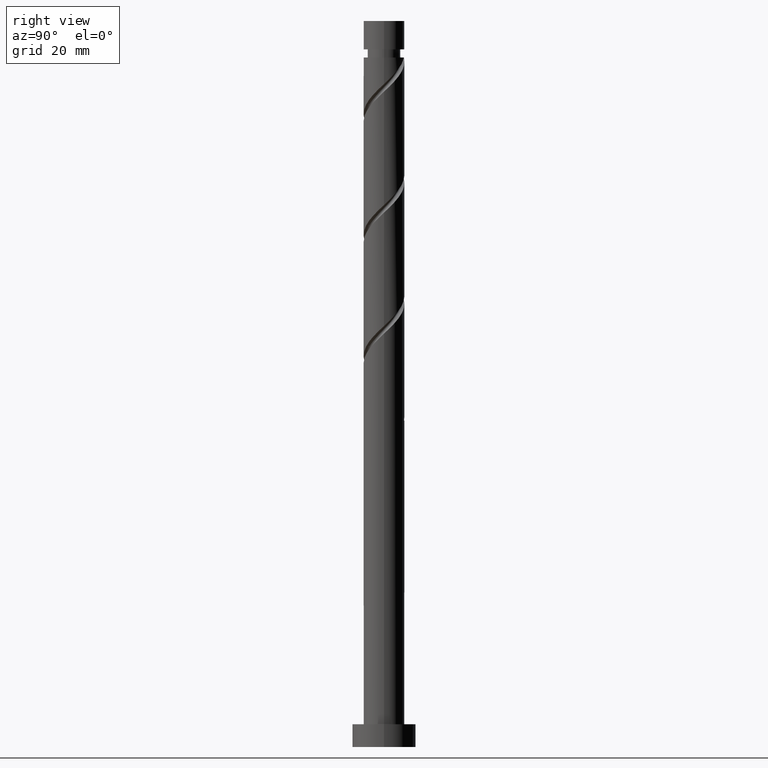
[diagram: clean part render]
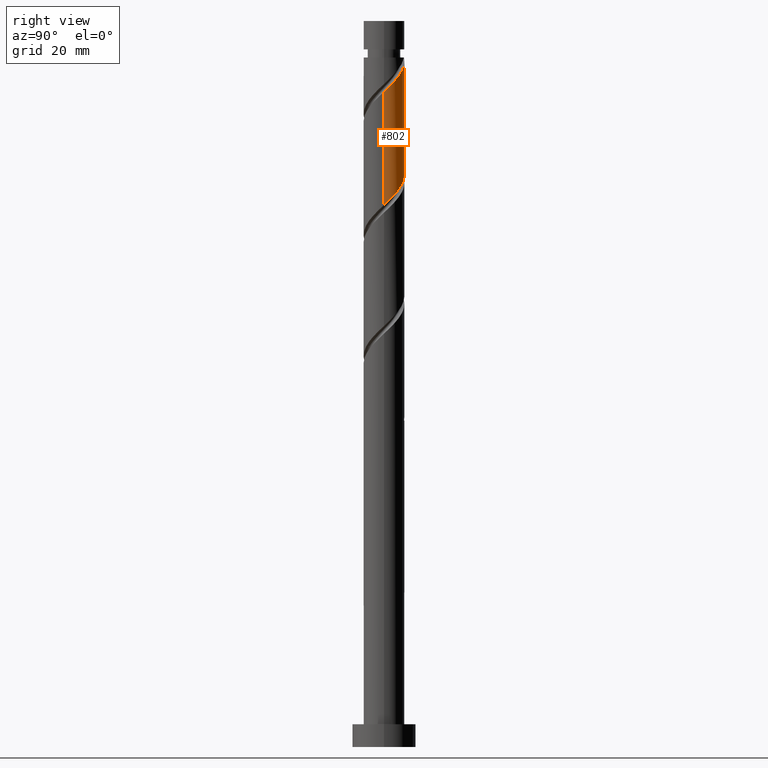
[diagram: same view with one face highlighted and labeled with its STEP entity id]
A machine part, right view. The second image highlights one B-rep face of the part: STEP entity #802.
In plain terms, the highlighted cylindrical surface (edge-blend (fillet) strip) has radius 4.5 mm, axis along (-0, -0, -1).
Its self-contained STEP definition (entity closure, byte-faithful):
#2 = CARTESIAN_POINT ( 'NONE',  ( 4.500000000000000000, 0.5153801732330558494, 119.9550230616210484 ) ) ;
#23 = ORIENTED_EDGE ( 'NONE', *, *, #377, .F. ) ;
#30 = EDGE_LOOP ( 'NONE', ( #661, #159, #528, #23, #1013 ) ) ;
#37 = CARTESIAN_POINT ( 'NONE',  ( -3.639477652303301891, 2.646545374329494660, 130.1347601445003477 ) ) ;
#63 = CARTESIAN_POINT ( 'NONE',  ( 4.019993431204692769, 2.123267486448496832, 146.4983965081366932 ) ) ;
#153 = CARTESIAN_POINT ( 'NONE',  ( 3.137559031908912832, 3.225790340565672931, 122.8620328717730956 ) ) ;
#159 = ORIENTED_EDGE ( 'NONE', *, *, #1493, .T. ) ;
#199 = CARTESIAN_POINT ( 'NONE',  ( 4.455349029032745101, 0.9046972064923982648, 145.2862752960155035 ) ) ;
#260 = CARTESIAN_POINT ( 'NONE',  ( -4.500000000000000000, -2.737098188739860746E-15, 132.8023964419830634 ) ) ;
#268 = CARTESIAN_POINT ( 'NONE',  ( -3.258961873401919007, 3.169823262210494708, 129.5286995384397528 ) ) ;
#324 = EDGE_CURVE ( 'NONE', #899, #1571, #1308, .T. ) ;
#333 = CARTESIAN_POINT ( 'NONE',  ( 1.630892978049459430, 4.194065819005349915, 149.5286995384397244 ) ) ;
#363 = CARTESIAN_POINT ( 'NONE',  ( -4.499999999999993783, 0.000000000000000000, 151.9529419626821607 ) ) ;
#377 = EDGE_CURVE ( 'NONE', #1212, #899, #1289, .T. ) ;
#405 = DIRECTION ( 'NONE',  ( -1.000000000000000000, 0.000000000000000000, 0.000000000000000000 ) ) ;
#425 = CARTESIAN_POINT ( 'NONE',  ( 0.3832254664060578686, 4.483652332852973821, 150.7408207505609141 ) ) ;
#427 = CARTESIAN_POINT ( 'NONE',  ( -2.233908606408677056, 3.959578808933011729, 128.3165783263185631 ) ) ;
#433 = CARTESIAN_POINT ( 'NONE',  ( 3.639477652303308108, 2.646545374329495992, 147.1044571141973165 ) ) ;
#512 = CARTESIAN_POINT ( 'NONE',  ( -0.3832254664060561478, 4.483652332852966715, 126.4983965081367074 ) ) ;
#528 = ORIENTED_EDGE ( 'NONE', *, *, #324, .F. ) ;
#547 = CARTESIAN_POINT ( 'NONE',  ( 0.2614264168781255671, 4.538751836628258651, 125.8923359020761268 ) ) ;
#556 =( BOUNDED_CURVE ( )  B_SPLINE_CURVE ( 2, ( #685, #1205, #1322, #199, #958, #63, #433, #1476, #815, #966, #333, #1186, #425, #1470, #1330 ),
 .UNSPECIFIED., .F., .T. ) 
 B_SPLINE_CURVE_WITH_KNOTS ( ( 3, 2, 2, 2, 2, 2, 2, 3 ),
 ( 0.6795252162417516617, 0.6818181818181818787, 0.6931818181818181213, 0.7045454545454545858, 0.7159090909090908283, 0.7272727272727272929, 0.7386363636363636465, 0.7500000000000000000 ),
 .UNSPECIFIED. ) 
 CURVE ( )  GEOMETRIC_REPRESENTATION_ITEM ( )  RATIONAL_B_SPLINE_CURVE ( ( 0.9061101570135616790, 0.9072237824201437872, 0.9090909090909210510, 0.8998376744372232894, 0.9090909090909210510, 0.8998376744372232894, 0.9090909090909210510, 0.8998376744372232894, 0.9090909090909210510, 0.8998376744372232894, 0.9090909090909210510, 0.8998376744372232894, 0.9090909090909210510, 0.8998376744372232894, 0.9090909090909210510 ) ) 
 REPRESENTATION_ITEM ( '' )  );
#632 = CARTESIAN_POINT ( 'NONE',  ( -4.237671230118713162, 1.513982346470446494, 131.3468813566215943 ) ) ;
#638 = CARTESIAN_POINT ( 'NONE',  ( -4.500000000000000000, 0.000000000000000000, 160.0000000000000000 ) ) ;
#648 = CARTESIAN_POINT ( 'NONE',  ( 2.673760399956917500, 3.676903225482056392, 123.4680934778337047 ) ) ;
#655 = VECTOR ( 'NONE', #1165, 1000.000000000000000 ) ;
#661 = ORIENTED_EDGE ( 'NONE', *, *, #932, .F. ) ;
#673 = VERTEX_POINT ( 'NONE', #1499 ) ;
#685 = CARTESIAN_POINT ( 'NONE',  ( 4.500000000000006217, 2.078998077785999559E-15, 144.4368208167146008 ) ) ;
#700 = DIRECTION ( 'NONE',  ( -0.000000000000000000, -0.000000000000000000, -1.000000000000000000 ) ) ;
#717 = AXIS2_PLACEMENT_3D ( 'NONE', #1162, #770, #405 ) ;
#763 = CARTESIAN_POINT ( 'NONE',  ( -1.027877349690238029, 4.428552829077677444, 127.1044571141973449 ) ) ;
#770 = DIRECTION ( 'NONE',  ( -0.000000000000000000, -0.000000000000000000, -1.000000000000000000 ) ) ;
#787 = CARTESIAN_POINT ( 'NONE',  ( -4.019993431204683887, 2.123267486448495944, 130.7408207505609710 ) ) ;
#797 = CARTESIAN_POINT ( 'NONE',  ( -4.492553887271115265, 0.2587654729000727905, 132.5590025687427556 ) ) ;
#802 = ADVANCED_FACE ( 'NONE', ( #913 ), #1302, .T. ) ;
#815 = CARTESIAN_POINT ( 'NONE',  ( 2.746435239905300918, 3.564701035571758325, 148.3165783263185062 ) ) ;
#816 = VERTEX_POINT ( 'NONE', #1293 ) ;
#899 = VERTEX_POINT ( 'NONE', #937 ) ;
#909 = LINE ( 'NONE', #1030, #1422 ) ;
#913 = FACE_OUTER_BOUND ( 'NONE', #30, .T. ) ;
#932 = EDGE_CURVE ( 'NONE', #673, #816, #556, .T. ) ;
#937 = CARTESIAN_POINT ( 'NONE',  ( -4.500000000000000000, -2.737098188739860746E-15, 132.8023964419830634 ) ) ;
#953 = DIRECTION ( 'NONE',  ( -1.000000000000000000, 0.000000000000000000, 0.000000000000000000 ) ) ;
#958 = CARTESIAN_POINT ( 'NONE',  ( 4.237671230118718491, 1.513982346470447382, 145.8923359020760415 ) ) ;
#966 = CARTESIAN_POINT ( 'NONE',  ( 2.233908606408679720, 3.959578808933018834, 148.9226389323791295 ) ) ;
#1013 = ORIENTED_EDGE ( 'NONE', *, *, #1597, .T. ) ;
#1030 = CARTESIAN_POINT ( 'NONE',  ( 4.500000000000000000, 5.510910596163088569E-16, 160.0000000000000000 ) ) ;
#1037 = CARTESIAN_POINT ( 'NONE',  ( -2.746435239905296921, 3.564701035571752552, 128.9226389323791579 ) ) ;
#1047 = CARTESIAN_POINT ( 'NONE',  ( -4.500000000000000888, 0.1294898693571997217, 132.6802984372648382 ) ) ;
#1066 = CARTESIAN_POINT ( 'NONE',  ( 1.529550969913791025, 4.281248163371742521, 124.6802146899549086 ) ) ;
#1077 = CIRCLE ( 'NONE', #1258, 4.499999999999993783 ) ;
#1108 = CARTESIAN_POINT ( 'NONE',  ( 0.000000000000000000, 0.000000000000000000, 151.9529419626821607 ) ) ;
#1157 = CARTESIAN_POINT ( 'NONE',  ( 4.237194347937611738, 1.647663820002029489, 121.0438510535912684 ) ) ;
#1162 = CARTESIAN_POINT ( 'NONE',  ( 0.000000000000000000, 0.000000000000000000, 160.0000000000000000 ) ) ;
#1165 = DIRECTION ( 'NONE',  ( -0.000000000000000000, -0.000000000000000000, -1.000000000000000000 ) ) ;
#1172 = CARTESIAN_POINT ( 'NONE',  ( 0.8954886933959590456, 4.410000000000001030, 125.2862752960155461 ) ) ;
#1186 = CARTESIAN_POINT ( 'NONE',  ( 1.027877349690240472, 4.428552829077682773, 150.1347601445003761 ) ) ;
#1205 = CARTESIAN_POINT ( 'NONE',  ( 4.500000000000005329, 0.1294898693572152371, 144.5589188214328260 ) ) ;
#1212 = VERTEX_POINT ( 'NONE', #363 ) ;
#1258 = AXIS2_PLACEMENT_3D ( 'NONE', #1108, #700, #953 ) ;
#1280 = CARTESIAN_POINT ( 'NONE',  ( 3.919276005899260618, 2.211170637825661700, 121.6499116596518775 ) ) ;
#1289 = LINE ( 'NONE', #638, #655 ) ;
#1290 = DIRECTION ( 'NONE',  ( -0.000000000000000000, -0.000000000000000000, -1.000000000000000000 ) ) ;
#1293 = CARTESIAN_POINT ( 'NONE',  ( -0.8954886933959572692, 4.410000000000003695, 151.9529419626822175 ) ) ;
#1295 = CARTESIAN_POINT ( 'NONE',  ( -1.630892978049456765, 4.194065819005344586, 127.7105177202579256 ) ) ;
#1302 = CYLINDRICAL_SURFACE ( 'NONE', #717, 4.500000000000000000 ) ;
#1304 = CARTESIAN_POINT ( 'NONE',  ( 4.500000000000000888, -4.531916673159441860E-15, 119.4690631086497490 ) ) ;
#1308 =( BOUNDED_CURVE ( )  B_SPLINE_CURVE ( 2, ( #260, #1047, #797, #1418, #632, #787, #37, #268, #1037, #427, #1295, #763, #512, #547, #1172, #1066, #1550, #648, #153, #1410, #1280, #1157, #1560, #2, #1304 ),
 .UNSPECIFIED., .F., .T. ) 
 B_SPLINE_CURVE_WITH_KNOTS ( ( 3, 2, 2, 2, 2, 2, 2, 2, 2, 2, 2, 2, 3 ),
 ( 0.4295252162417513286, 0.4318181818181818232, 0.4431818181818181768, 0.4545454545454545303, 0.4659090909090908839, 0.4772727272727272929, 0.4886363636363636465, 0.5000000000000000000, 0.5113636363636363535, 0.5227272727272727071, 0.5340909090909090606, 0.5454545454545454142, 0.5545252162417512176 ),
 .UNSPECIFIED. ) 
 CURVE ( )  GEOMETRIC_REPRESENTATION_ITEM ( )  RATIONAL_B_SPLINE_CURVE ( ( 0.9061101570135547956, 0.9072237824201369039, 0.9090909090909143897, 0.8998376744372167391, 0.9090909090909143897, 0.8998376744372167391, 0.9090909090909143897, 0.8998376744372167391, 0.9090909090909143897, 0.8998376744372167391, 0.9090909090909143897, 0.8998376744372167391, 0.9090909090909143897, 0.8998376744372167391, 0.9090909090909143897, 0.8998376744372167391, 0.9090909090909143897, 0.8998376744372167391, 0.9090909090909143897, 0.8998376744372167391, 0.9090909090909143897, 0.8998376744372167391, 0.9090909090909143897, 0.9017048011079942249, 0.9061101570135546845 ) ) 
 REPRESENTATION_ITEM ( '' )  );
#1322 = CARTESIAN_POINT ( 'NONE',  ( 4.492553887271119706, 0.2587654729000713472, 144.6802146899549086 ) ) ;
#1330 = CARTESIAN_POINT ( 'NONE',  ( -0.8954886933959572692, 4.410000000000002807, 151.9529419626822175 ) ) ;
#1410 = CARTESIAN_POINT ( 'NONE',  ( 3.601357663860908609, 2.774677455649289914, 122.2559722657124865 ) ) ;
#1418 = CARTESIAN_POINT ( 'NONE',  ( -4.455349029032740660, 0.9046972064923991530, 131.9529419626821607 ) ) ;
#1422 = VECTOR ( 'NONE', #1290, 1000.000000000000000 ) ;
#1459 = CARTESIAN_POINT ( 'NONE',  ( 4.500000000000000888, -4.531916673159441860E-15, 119.4690631086497490 ) ) ;
#1470 = CARTESIAN_POINT ( 'NONE',  ( -0.2614264168781245123, 4.538751836628264869, 151.3468813566215658 ) ) ;
#1476 = CARTESIAN_POINT ( 'NONE',  ( 3.258961873401925669, 3.169823262210496484, 147.7105177202579114 ) ) ;
#1493 = EDGE_CURVE ( 'NONE', #673, #1571, #909, .T. ) ;
#1499 = CARTESIAN_POINT ( 'NONE',  ( 4.500000000000006217, 2.078998077785999559E-15, 144.4368208167146292 ) ) ;
#1550 = CARTESIAN_POINT ( 'NONE',  ( 2.101655684935353818, 3.979075694426899013, 124.0741540838943138 ) ) ;
#1560 = CARTESIAN_POINT ( 'NONE',  ( 4.383476546723549916, 1.017415040347141586, 120.4377904475306593 ) ) ;
#1571 = VERTEX_POINT ( 'NONE', #1459 ) ;
#1597 = EDGE_CURVE ( 'NONE', #1212, #816, #1077, .T. ) ;